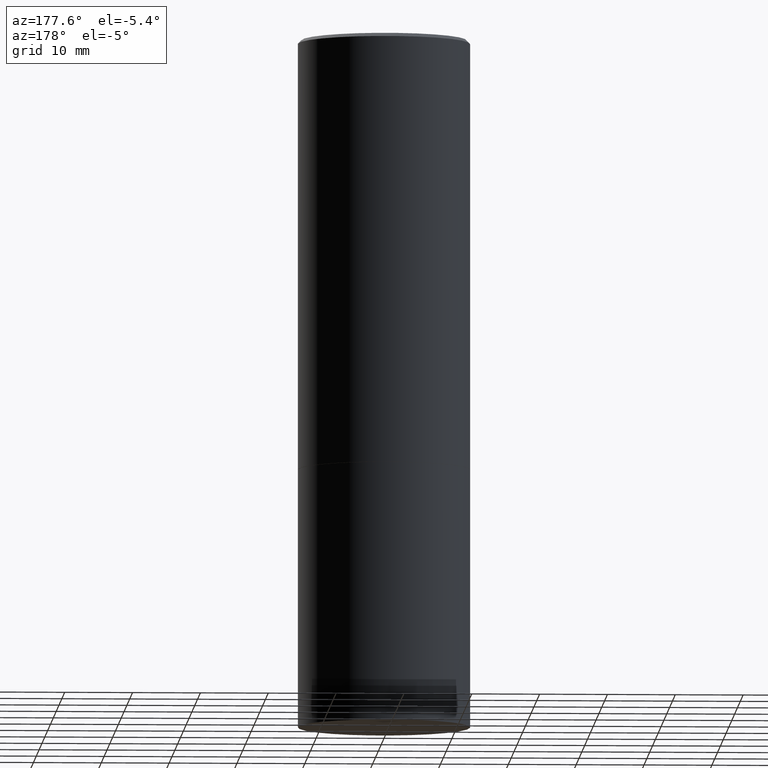
[diagram: clean part render]
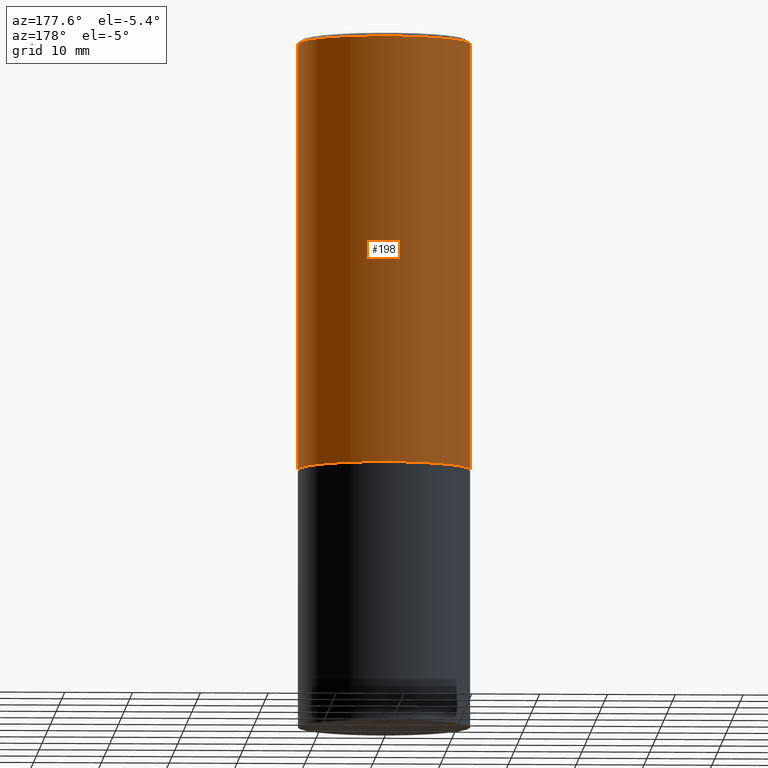
[diagram: same view with one face highlighted and labeled with its STEP entity id]
A machine part, auxiliary view. The second image highlights one B-rep face of the part: STEP entity #198.
In plain terms, the highlighted cylindrical surface (partial cylindrical patch) has radius 12.7 mm, axis along (-0, 0, 1).
Its self-contained STEP definition (entity closure, byte-faithful):
#11 = FACE_OUTER_BOUND ( 'NONE', #121, .T. ) ;
#15 = DIRECTION ( 'NONE',  ( -2.445468806185136597E-29, 3.491481338843145583E-15, 1.000000000000000000 ) ) ;
#17 = CARTESIAN_POINT ( 'NONE',  ( -0.5000000000000001110, -8.448070674724403070E-16, -2.499000000000000110 ) ) ;
#37 = AXIS2_PLACEMENT_3D ( 'NONE', #355, #319, #87 ) ;
#50 = CARTESIAN_POINT ( 'NONE',  ( 4.890937612370302060E-31, -6.982962677686331052E-17, -0.02000000000000011491 ) ) ;
#51 = DIRECTION ( 'NONE',  ( -2.445468806185136877E-29, 3.491481338843145188E-15, 1.000000000000000000 ) ) ;
#52 = VECTOR ( 'NONE', #51, 39.37007874015748143 ) ;
#57 = VERTEX_POINT ( 'NONE', #126 ) ;
#83 = LINE ( 'NONE', #239, #52 ) ;
#87 = DIRECTION ( 'NONE',  ( 1.000000000000000000, -6.982962677686266711E-15, 4.876176775795935793E-29 ) ) ;
#113 = CARTESIAN_POINT ( 'NONE',  ( 0.4999999999999997780, -3.500078625662627896E-15, -0.02000000000000011491 ) ) ;
#119 = EDGE_CURVE ( 'NONE', #211, #240, #138, .T. ) ;
#121 = EDGE_LOOP ( 'NONE', ( #143, #200, #173, #354 ) ) ;
#126 = CARTESIAN_POINT ( 'NONE',  ( -0.4999999999999997780, 3.421651712066268479E-15, -0.02000000000000011491 ) ) ;
#136 = EDGE_CURVE ( 'NONE', #240, #57, #209, .T. ) ;
#138 = LINE ( 'NONE', #259, #146 ) ;
#142 = CYLINDRICAL_SURFACE ( 'NONE', #37, 0.4999999999999999445 ) ;
#143 = ORIENTED_EDGE ( 'NONE', *, *, #313, .T. ) ;
#146 = VECTOR ( 'NONE', #208, 39.37007874015748143 ) ;
#173 = ORIENTED_EDGE ( 'NONE', *, *, #136, .F. ) ;
#176 = EDGE_CURVE ( 'NONE', #235, #57, #83, .T. ) ;
#181 = AXIS2_PLACEMENT_3D ( 'NONE', #184, #217, #214 ) ;
#184 = CARTESIAN_POINT ( 'NONE',  ( 6.111226546656657010E-29, -8.725211865769021935E-15, -2.499000000000000110 ) ) ;
#189 = AXIS2_PLACEMENT_3D ( 'NONE', #50, #15, #328 ) ;
#198 = ADVANCED_FACE ( 'NONE', ( #11 ), #142, .T. ) ;
#200 = ORIENTED_EDGE ( 'NONE', *, *, #176, .T. ) ;
#208 = DIRECTION ( 'NONE',  ( -2.445468806185136877E-29, 3.491481338843145188E-15, 1.000000000000000000 ) ) ;
#209 = CIRCLE ( 'NONE', #189, 0.4999999999999997780 ) ;
#211 = VERTEX_POINT ( 'NONE', #287 ) ;
#214 = DIRECTION ( 'NONE',  ( 1.000000000000000000, -6.982962677686267499E-15, 0.000000000000000000 ) ) ;
#217 = DIRECTION ( 'NONE',  ( -2.445468806185136597E-29, 3.491481338843145583E-15, 1.000000000000000000 ) ) ;
#235 = VERTEX_POINT ( 'NONE', #17 ) ;
#239 = CARTESIAN_POINT ( 'NONE',  ( -0.4999999999999999445, 3.552713678800500535E-15, -2.459467545127452611E-29 ) ) ;
#240 = VERTEX_POINT ( 'NONE', #113 ) ;
#259 = CARTESIAN_POINT ( 'NONE',  ( 0.4999999999999999445, -3.491481338843132961E-15, 2.438088387897967616E-29 ) ) ;
#287 = CARTESIAN_POINT ( 'NONE',  ( 0.5000000000000001110, -1.221669320461215687E-14, -2.499000000000000110 ) ) ;
#313 = EDGE_CURVE ( 'NONE', #211, #235, #332, .T. ) ;
#319 = DIRECTION ( 'NONE',  ( -2.445468806185136597E-29, 3.491481338843145583E-15, 1.000000000000000000 ) ) ;
#328 = DIRECTION ( 'NONE',  ( 1.000000000000000000, -6.982962677686266711E-15, 0.000000000000000000 ) ) ;
#332 = CIRCLE ( 'NONE', #181, 0.5000000000000001110 ) ;
#354 = ORIENTED_EDGE ( 'NONE', *, *, #119, .F. ) ;
#355 = CARTESIAN_POINT ( 'NONE',  ( 0.000000000000000000, 0.000000000000000000, 0.000000000000000000 ) ) ;